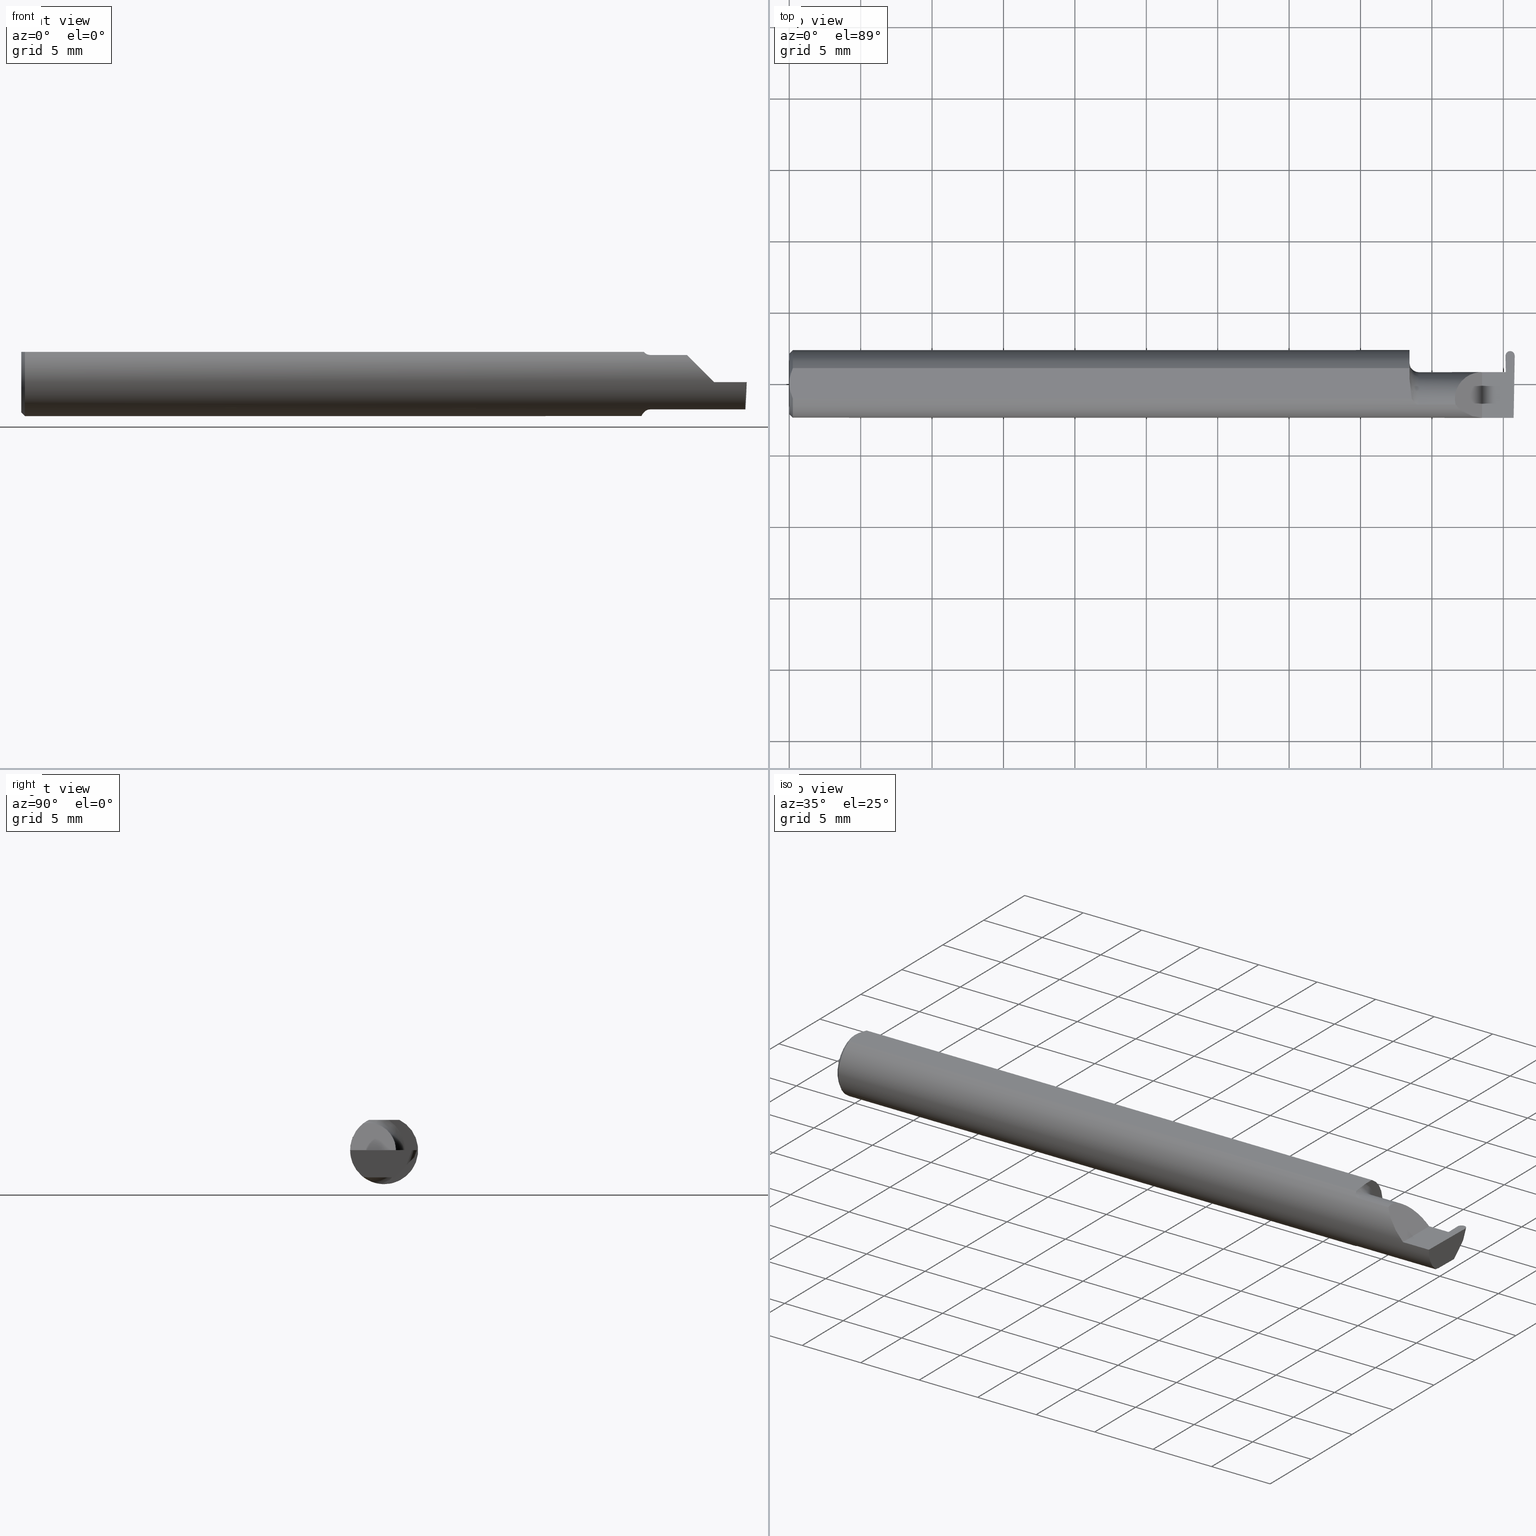
[diagram: canonical four-view strip — front | top / right | iso, engineering-drawing reading convention]
A machine part, canonical four-view strip (front | top / right | iso — engineering-drawing reading convention). The complete STEP part file that produces these views, byte-faithful:
ISO-10303-21;
HEADER;
FILE_DESCRIPTION (( 'STEP AP203' ),
    '1' );
FILE_NAME ('221816-GFR025K-4.STEP',
    '2024-06-17T19:11:29',
    ( '' ),
    ( '' ),
    'SwSTEP 2.0',
    'SolidWorks 2022',
    '' );
FILE_SCHEMA (( 'CONFIG_CONTROL_DESIGN' ));
ENDSEC;

DATA;
#1 = PERSON_AND_ORGANIZATION_ROLE ( 'creator' ) ;
#2 = LINE ( 'NONE', #386, #18 ) ;
#3 = ORIENTED_EDGE ( 'NONE', *, *, #178, .T. ) ;
#4 = VECTOR ( 'NONE', #614, 39.37007874015748143 ) ;
#5 = DATE_TIME_ROLE ( 'creation_date' ) ;
#6 = CARTESIAN_POINT ( 'NONE',  ( 1.974486369625657378, 0.07677130609030106967, 0.000000000000000000 ) ) ;
#7 = ORIENTED_EDGE ( 'NONE', *, *, #551, .T. ) ;
#8 = EDGE_CURVE ( 'NONE', #28, #357, #447, .T. ) ;
#9 = DIRECTION ( 'NONE',  ( 1.000000000000000000, -0.000000000000000000, -0.000000000000000000 ) ) ;
#10 = DIRECTION ( 'NONE',  ( -0.000000000000000000, 1.000000000000000000, -0.000000000000000000 ) ) ;
#11 = VERTEX_POINT ( 'NONE', #413 ) ;
#12 = CARTESIAN_POINT ( 'NONE',  ( 1.975523074283046965, 0.07412453217687620111, -0.02836003337206605482 ) ) ;
#13 = CARTESIAN_POINT ( 'NONE',  ( 1.980055790199319432, 0.08287919070721787296, -0.01960537484172428582 ) ) ;
#14 = EDGE_LOOP ( 'NONE', ( #382, #61, #676, #64, #215 ) ) ;
#15 = LINE ( 'NONE', #130, #182 ) ;
#16 = CARTESIAN_POINT ( 'NONE',  ( 1.717870098798738532, -0.04602557371825104909, 0.08162090280442951817 ) ) ;
#17 = LINE ( 'NONE', #657, #125 ) ;
#18 = VECTOR ( 'NONE', #594, 39.37007874015748854 ) ;
#19 = VECTOR ( 'NONE', #509, 39.37007874015748854 ) ;
#20 = CARTESIAN_POINT ( 'NONE',  ( 1.987236605000000100, 0.08345985621932504317, -0.01902470932961709826 ) ) ;
#21 = EDGE_CURVE ( 'NONE', #514, #43, #628, .T. ) ;
#22 = CARTESIAN_POINT ( 'NONE',  ( 1.718379054196076838, -0.04728090127810213178, -0.08090622725813384486 ) ) ;
#23 = DIRECTION ( 'NONE',  ( 1.000000000000000000, 0.000000000000000000, 0.000000000000000000 ) ) ;
#24 = ORIENTED_EDGE ( 'NONE', *, *, #119, .F. ) ;
#25 = CARTESIAN_POINT ( 'NONE',  ( 1.710323329158491390, -0.01767221859896409009, -0.09207639555340685344 ) ) ;
#26 = DIRECTION ( 'NONE',  ( 0.000000000000000000, 0.9396926207859082059, -0.3420201433256692125 ) ) ;
#27 = LINE ( 'NONE', #370, #172 ) ;
#28 = VERTEX_POINT ( 'NONE', #566 ) ;
#29 = AXIS2_PLACEMENT_3D ( 'NONE', #589, #699, #105 ) ;
#30 = VECTOR ( 'NONE', #179, 39.37007874015748143 ) ;
#31 = CONICAL_SURFACE ( 'NONE', #349, 0.08359999999999989662, 0.7853981633974458365 ) ;
#32 = CARTESIAN_POINT ( 'NONE',  ( 1.998318014211375448, 0.06205680439066463272, -0.04042776115827773770 ) ) ;
#33 = LINE ( 'NONE', #460, #423 ) ;
#34 = EDGE_CURVE ( 'NONE', #57, #470, #27, .T. ) ;
#35 = ORIENTED_EDGE ( 'NONE', *, *, #66, .F. ) ;
#36 = ORIENTED_EDGE ( 'NONE', *, *, #588, .T. ) ;
#37 = CARTESIAN_POINT ( 'NONE',  ( 1.709999999999999964, 0.03239999999999998437, 3.551475717527338624E-17 ) ) ;
#38 = CARTESIAN_POINT ( 'NONE',  ( 1.969248479888576320, 0.03239999999999999825, 0.000000000000000000 ) ) ;
#39 = DIRECTION ( 'NONE',  ( 0.000000000000000000, -0.9396926207859083169, 0.3420201433256689905 ) ) ;
#40 = ORIENTED_EDGE ( 'NONE', *, *, #99, .T. ) ;
#41 = DIRECTION ( 'NONE',  ( 1.613967815530507848E-16, -1.000000000000000000, 0.000000000000000000 ) ) ;
#42 = CARTESIAN_POINT ( 'NONE',  ( 1.714570820222980574, -0.02392027542784330024, 0.08359999999999992437 ) ) ;
#43 = VERTEX_POINT ( 'NONE', #319 ) ;
#44 = EDGE_LOOP ( 'NONE', ( #154, #387, #562, #309 ) ) ;
#45 = EDGE_CURVE ( 'NONE', #11, #224, #264, .T. ) ;
#46 = CARTESIAN_POINT ( 'NONE',  ( 1.999998056073120534, 0.07741385304294044756, 0.000000000000000000 ) ) ;
#47 =( BOUNDED_CURVE ( )  B_SPLINE_CURVE ( 3, ( #582, #50, #275, #261 ),
 .UNSPECIFIED., .F., .T. ) 
 B_SPLINE_CURVE_WITH_KNOTS ( ( 4, 4 ),
 ( 3.171655575341799871, 4.698770164224572277 ),
 .UNSPECIFIED. ) 
 CURVE ( )  GEOMETRIC_REPRESENTATION_ITEM ( )  RATIONAL_B_SPLINE_CURVE ( ( 1.000000000000000000, 0.8149204888834234994, 0.8149204888834234994, 1.000000000000000000 ) ) 
 REPRESENTATION_ITEM ( '' )  );
#48 = PERSON ( 'UNSPECIFIED', 'UNSPECIFIED', 'UNSPECIFIED', ('UNSPECIFIED'), ('UNSPECIFIED'), ('UNSPECIFIED') ) ;
#49 = ADVANCED_FACE ( 'NONE', ( #251 ), #681, .F. ) ;
#50 = CARTESIAN_POINT ( 'NONE',  ( 1.994417419800680769, 0.08287919070721785908, -0.01960537484172428582 ) ) ;
#51 = SECURITY_CLASSIFICATION_LEVEL ( 'unclassified' ) ;
#52 = CARTESIAN_POINT ( 'NONE',  ( 1.996507080450274474, 0.02748456554894272708, -0.07500000000000002498 ) ) ;
#53 = VERTEX_POINT ( 'NONE', #203 ) ;
#54 = DIRECTION ( 'NONE',  ( -1.224646799147358877E-16, 0.000000000000000000, -1.000000000000000000 ) ) ;
#55 = APPROVAL_ROLE ( '' ) ;
#56 = FACE_OUTER_BOUND ( 'NONE', #171, .T. ) ;
#57 = VERTEX_POINT ( 'NONE', #417 ) ;
#58 = AXIS2_PLACEMENT_3D ( 'NONE', #277, #486, #697 ) ;
#59 =( NAMED_UNIT ( * ) SI_UNIT ( $, .STERADIAN. ) SOLID_ANGLE_UNIT ( ) );
#60 = CARTESIAN_POINT ( 'NONE',  ( 1.987236605000000100, 0.08888709915835653341, -0.004156660900289306168 ) ) ;
#61 = ORIENTED_EDGE ( 'NONE', *, *, #200, .F. ) ;
#62 = LINE ( 'NONE', #285, #219 ) ;
#63 = CARTESIAN_POINT ( 'NONE',  ( 1.854690286057537163, -0.08092595952420827965, 0.05530971394246238931 ) ) ;
#64 = ORIENTED_EDGE ( 'NONE', *, *, #78, .F. ) ;
#65 = CARTESIAN_POINT ( 'NONE',  ( 1.709999999999999964, -0.006757276995305152960, -0.09335576686851605743 ) ) ;
#66 = EDGE_CURVE ( 'NONE', #377, #362, #625, .T. ) ;
#67 = CARTESIAN_POINT ( 'NONE',  ( 1.999986840374342822, 0.07677130609030106967, 0.000000000000000000 ) ) ;
#68 = APPROVAL_DATE_TIME ( #238, #429 ) ;
#69 = CC_DESIGN_APPROVAL ( #665, ( #242 ) ) ;
#70 = CARTESIAN_POINT ( 'NONE',  ( 0.0009807498324118613890, 0.01453516766257752398, 0.08359999999999992437 ) ) ;
#71 = CARTESIAN_POINT ( 'NONE',  ( 1.734999999999999876, -0.05810704225352093799, 0.07337936794867844226 ) ) ;
#72 = CARTESIAN_POINT ( 'NONE',  ( 1.975446786689251333, 0.03221730376948541558, -0.005231735530809524318 ) ) ;
#73 = APPLICATION_CONTEXT ( 'configuration controlled 3d designs of mechanical parts and assemblies' ) ;
#74 = CARTESIAN_POINT ( 'NONE',  ( 0.000000000000000000, 0.000000000000000000, 0.08359999999999991049 ) ) ;
#75 = APPROVAL_STATUS ( 'not_yet_approved' ) ;
#76 = ADVANCED_FACE ( 'NONE', ( #94 ), #633, .F. ) ;
#77 = AXIS2_PLACEMENT_3D ( 'NONE', #569, #512, #26 ) ;
#78 = EDGE_CURVE ( 'NONE', #186, #259, #167, .T. ) ;
#79 = CARTESIAN_POINT ( 'NONE',  ( 1.734999999999999876, -0.05810704225352095881, -0.07337936794867842838 ) ) ;
#80 = CARTESIAN_POINT ( 'NONE',  ( 1.975260873654413052, 0.03239999999999999825, 0.000000000000000000 ) ) ;
#81 = ORIENTED_EDGE ( 'NONE', *, *, #348, .F. ) ;
#82 = CARTESIAN_POINT ( 'NONE',  ( 0.01000000000000016674, -0.04209513035969864037, 0.08359999999999988274 ) ) ;
#83 = LINE ( 'NONE', #80, #335 ) ;
#84 = EDGE_LOOP ( 'NONE', ( #324, #321, #227, #432, #698 ) ) ;
#85 = EDGE_CURVE ( 'NONE', #470, #314, #273, .T. ) ;
#86 = CARTESIAN_POINT ( 'NONE',  ( 1.716206319820904991, -0.04283575577410217439, -0.08338874798717361980 ) ) ;
#87 = ADVANCED_FACE ( 'NONE', ( #56 ), #439, .F. ) ;
#88 = CARTESIAN_POINT ( 'NONE',  ( 1.709999999999999964, 0.003280657920457247939, 0.08359999999999991049 ) ) ;
#89 = ORIENTED_EDGE ( 'NONE', *, *, #85, .F. ) ;
#90 = CARTESIAN_POINT ( 'NONE',  ( 1.910000000000000142, 0.03240000000000001906, 3.551475717527338624E-17 ) ) ;
#91 = DIRECTION ( 'NONE',  ( 0.000000000000000000, 0.000000000000000000, 1.000000000000000000 ) ) ;
#92 = VERTEX_POINT ( 'NONE', #52 ) ;
#93 = FACE_OUTER_BOUND ( 'NONE', #14, .T. ) ;
#94 = FACE_OUTER_BOUND ( 'NONE', #342, .T. ) ;
#95 = VERTEX_POINT ( 'NONE', #648 ) ;
#96 = PERSON_AND_ORGANIZATION_ROLE ( 'creator' ) ;
#97 = DIRECTION ( 'NONE',  ( 0.03490480639812536257, 0.000000000000000000, -0.9993906415863165194 ) ) ;
#98 = ORIENTED_EDGE ( 'NONE', *, *, #673, .F. ) ;
#99 = EDGE_CURVE ( 'NONE', #92, #53, #2, .T. ) ;
#100 = AXIS2_PLACEMENT_3D ( 'NONE', #359, #143, #191 ) ;
#101 = AXIS2_PLACEMENT_3D ( 'NONE', #556, #457, #402 ) ;
#102 = DATE_AND_TIME ( #597, #516 ) ;
#103 = FACE_OUTER_BOUND ( 'NONE', #211, .T. ) ;
#104 = ORIENTED_EDGE ( 'NONE', *, *, #430, .T. ) ;
#105 = DIRECTION ( 'NONE',  ( 0.000000000000000000, 0.000000000000000000, -1.000000000000000000 ) ) ;
#106 = B_SPLINE_CURVE_WITH_KNOTS ( 'NONE', 3,
 ( #296, #16, #241, #456, #313, #142, #624, #369 ),
 .UNSPECIFIED., .F., .F.,
 ( 4, 2, 2, 4 ),
 ( 4.741820243506000245E-07, 0.0003579866703973730020, 0.0005367429145838906006, 0.0007154991587704081450 ),
 .UNSPECIFIED. ) ;
#107 = CARTESIAN_POINT ( 'NONE',  ( 1.987236605000000100, 0.08708177269239944507, -0.009116754600250196253 ) ) ;
#108 = VERTEX_POINT ( 'NONE', #223 ) ;
#109 = DATE_AND_TIME ( #434, #466 ) ;
#110 = DIRECTION ( 'NONE',  ( -1.000000000000000000, -0.000000000000000000, -0.000000000000000000 ) ) ;
#111 = ORIENTED_EDGE ( 'NONE', *, *, #673, .T. ) ;
#112 = CARTESIAN_POINT ( 'NONE',  ( 1.976921122959496957, 0.02931965133412154506, -0.04667009593691548441 ) ) ;
#113 = CARTESIAN_POINT ( 'NONE',  ( 1.734999999999999876, -0.04260000000000008225, 0.000000000000000000 ) ) ;
#114 = CARTESIAN_POINT ( 'NONE',  ( 1.995283749808152374, -0.04259999999999949244, -0.07500000000000002498 ) ) ;
#115 = DIRECTION ( 'NONE',  ( 1.000000000000000000, 0.000000000000000000, 0.000000000000000000 ) ) ;
#116 = ORIENTED_EDGE ( 'NONE', *, *, #642, .T. ) ;
#117 = DIRECTION ( 'NONE',  ( -1.000000000000000000, -0.000000000000000000, -0.000000000000000000 ) ) ;
#118 = ORIENTED_EDGE ( 'NONE', *, *, #283, .T. ) ;
#119 = EDGE_CURVE ( 'NONE', #139, #168, #325, .T. ) ;
#120 =( BOUNDED_CURVE ( )  B_SPLINE_CURVE ( 3, ( #67, #552, #407, #350 ),
 .UNSPECIFIED., .F., .T. ) 
 B_SPLINE_CURVE_WITH_KNOTS ( ( 4, 4 ),
 ( 1.672436806532649367, 3.247686724355377752 ),
 .UNSPECIFIED. ) 
 CURVE ( )  GEOMETRIC_REPRESENTATION_ITEM ( )  RATIONAL_B_SPLINE_CURVE ( ( 1.000000000000000000, 0.8036869647627060687, 0.8036869647627060687, 1.000000000000000000 ) ) 
 REPRESENTATION_ITEM ( '' )  );
#121 = CARTESIAN_POINT ( 'NONE',  ( 0.01000000000000016674, 0.000000000000000000, 0.000000000000000000 ) ) ;
#122 = EDGE_CURVE ( 'NONE', #53, #11, #281, .T. ) ;
#123 = CARTESIAN_POINT ( 'NONE',  ( 0.000000000000000000, 0.04209513035969864037, 0.08359999999999988274 ) ) ;
#124 = AXIS2_PLACEMENT_3D ( 'NONE', #121, #344, #201 ) ;
#125 = VECTOR ( 'NONE', #236, 39.37007874015748143 ) ;
#126 = EDGE_LOOP ( 'NONE', ( #494, #7, #490 ) ) ;
#127 = ADVANCED_FACE ( 'NONE', ( #326 ), #392, .F. ) ;
#128 = LINE ( 'NONE', #123, #292 ) ;
#129 = FACE_OUTER_BOUND ( 'NONE', #649, .T. ) ;
#130 = CARTESIAN_POINT ( 'NONE',  ( 1.974539839182260614, 0.1197494621322279795, 0.01726489658328622667 ) ) ;
#131 = EDGE_CURVE ( 'NONE', #464, #269, #164, .T. ) ;
#132 = ORIENTED_EDGE ( 'NONE', *, *, #8, .T. ) ;
#133 = CARTESIAN_POINT ( 'NONE',  ( 1.854736604999999816, -0.05810704225352100738, 0.07337936794867837287 ) ) ;
#134 = ORIENTED_EDGE ( 'NONE', *, *, #384, .F. ) ;
#135 = AXIS2_PLACEMENT_3D ( 'NONE', #46, #600, #268 ) ;
#136 = ORIENTED_EDGE ( 'NONE', *, *, #548, .F. ) ;
#137 = CARTESIAN_POINT ( 'NONE',  ( 1.977964271591899248, -0.001060451341131600630, -0.07500000000000006661 ) ) ;
#138 = CYLINDRICAL_SURFACE ( 'NONE', #77, 0.01274999999999999745 ) ;
#139 = VERTEX_POINT ( 'NONE', #435 ) ;
#140 = EDGE_CURVE ( 'NONE', #108, #470, #396, .T. ) ;
#141 = DIRECTION ( 'NONE',  ( -1.613967815530507848E-16, 1.000000000000000000, 0.000000000000000000 ) ) ;
#142 = CARTESIAN_POINT ( 'NONE',  ( 1.730292432600753827, -0.05747478081012615675, 0.07388601572377859195 ) ) ;
#143 = DIRECTION ( 'NONE',  ( -1.000000000000000000, -0.000000000000000000, -0.000000000000000000 ) ) ;
#144 = DIRECTION ( 'NONE',  ( 1.000000000000000000, 1.613967815530507848E-16, 0.000000000000000000 ) ) ;
#145 = DIRECTION ( 'NONE',  ( 1.000000000000000000, 0.000000000000000000, -0.000000000000000000 ) ) ;
#146 = ORIENTED_EDGE ( 'NONE', *, *, #367, .F. ) ;
#147 = EDGE_CURVE ( 'NONE', #259, #513, #528, .T. ) ;
#148 = EDGE_CURVE ( 'NONE', #487, #455, #157, .T. ) ;
#149 = CARTESIAN_POINT ( 'NONE',  ( 0.000000000000000000, 0.000000000000000000, 0.08359999999999991049 ) ) ;
#150 = CARTESIAN_POINT ( 'NONE',  ( 1.974475153926879667, 0.07741385304294044756, 0.000000000000000000 ) ) ;
#151 = ORIENTED_EDGE ( 'NONE', *, *, #588, .F. ) ;
#152 = ADVANCED_FACE ( 'NONE', ( #103 ), #489, .F. ) ;
#153 = CARTESIAN_POINT ( 'NONE',  ( 1.997012998164632958, -0.09360000000000001652, 0.000000000000000000 ) ) ;
#154 = ORIENTED_EDGE ( 'NONE', *, *, #611, .F. ) ;
#155 = CARTESIAN_POINT ( 'NONE',  ( 1.987236605000000100, 0.08888709915835653341, -0.004156660900289306168 ) ) ;
#156 = APPLICATION_PROTOCOL_DEFINITION ( 'international standard', 'config_control_design', 1994, #445 ) ;
#157 = LINE ( 'NONE', #381, #355 ) ;
#158 = ORIENTED_EDGE ( 'NONE', *, *, #642, .F. ) ;
#159 = VECTOR ( 'NONE', #571, 39.37007874015748143 ) ;
#160 = AXIS2_PLACEMENT_3D ( 'NONE', #243, #444, #177 ) ;
#161 = CC_DESIGN_APPROVAL ( #477, ( #192 ) ) ;
#162 =( GEOMETRIC_REPRESENTATION_CONTEXT ( 3 ) GLOBAL_UNCERTAINTY_ASSIGNED_CONTEXT ( ( #308 ) ) GLOBAL_UNIT_ASSIGNED_CONTEXT ( ( #488, #693, #59 ) ) REPRESENTATION_CONTEXT ( 'NONE', 'WORKASPACE' ) );
#163 = PERSON_AND_ORGANIZATION_ROLE ( 'design_owner' ) ;
#164 = LINE ( 'NONE', #482, #658 ) ;
#165 = ORIENTED_EDGE ( 'NONE', *, *, #85, .T. ) ;
#166 = DIRECTION ( 'NONE',  ( 1.000000000000000000, 0.000000000000000000, 0.000000000000000000 ) ) ;
#167 = LINE ( 'NONE', #216, #599 ) ;
#168 = VERTEX_POINT ( 'NONE', #226 ) ;
#169 = COORDINATED_UNIVERSAL_TIME_OFFSET ( 8, 0, .BEHIND. ) ;
#170 = CARTESIAN_POINT ( 'NONE',  ( 1.987065021309431190, 0.09039999999999999425, 0.000000000000000000 ) ) ;
#171 = EDGE_LOOP ( 'NONE', ( #446, #421, #493, #329, #146, #525 ) ) ;
#172 = VECTOR ( 'NONE', #475, 39.37007874015747433 ) ;
#173 = LOCAL_TIME ( 12, 11, 29.00000000000000000, #485 ) ;
#174 = CARTESIAN_POINT ( 'NONE',  ( 1.976155195788624752, 0.06205680439066463966, -0.04042776115827773076 ) ) ;
#175 = SHAPE_DEFINITION_REPRESENTATION ( #400, #343 ) ;
#176 = ORIENTED_EDGE ( 'NONE', *, *, #228, .F. ) ;
#177 = DIRECTION ( 'NONE',  ( 0.000000000000000000, -1.000000000000000000, 0.000000000000000000 ) ) ;
#178 = EDGE_CURVE ( 'NONE', #487, #691, #605, .T. ) ;
#179 = DIRECTION ( 'NONE',  ( -0.03701368837992301264, -0.7066222423871552083, -0.7066222423871628688 ) ) ;
#180 = CARTESIAN_POINT ( 'NONE',  ( 0.01000000000000016674, 0.04209513035969864037, 0.08359999999999988274 ) ) ;
#181 = VECTOR ( 'NONE', #363, 39.37007874015748143 ) ;
#182 = VECTOR ( 'NONE', #295, 39.37007874015748143 ) ;
#183 = EDGE_CURVE ( 'NONE', #352, #95, #233, .T. ) ;
#184 = CARTESIAN_POINT ( 'NONE',  ( 1.969065783658062951, 0.03221730376948678254, -0.005231735530810288463 ) ) ;
#185 = CARTESIAN_POINT ( 'NONE',  ( 1.711762116932663558, -0.02818790137206256263, -0.08941930521177116065 ) ) ;
#186 = VERTEX_POINT ( 'NONE', #376 ) ;
#187 = DIRECTION ( 'NONE',  ( 0.000000000000000000, -0.9396926207859084279, 0.3420201433256686019 ) ) ;
#188 = CARTESIAN_POINT ( 'NONE',  ( 1.712856118429613828, -0.03323074941465632010, -0.08766015375840498225 ) ) ;
#189 =( BOUNDED_CURVE ( )  B_SPLINE_CURVE ( 3, ( #290, #12, #13, #448 ),
 .UNSPECIFIED., .F., .T. ) 
 B_SPLINE_CURVE_WITH_KNOTS ( ( 4, 4 ),
 ( 4.726007796544807071, 6.253122385427579921 ),
 .UNSPECIFIED. ) 
 CURVE ( )  GEOMETRIC_REPRESENTATION_ITEM ( )  RATIONAL_B_SPLINE_CURVE ( ( 1.000000000000000000, 0.8149204888834233884, 0.8149204888834233884, 1.000000000000000000 ) ) 
 REPRESENTATION_ITEM ( '' )  );
#190 = CARTESIAN_POINT ( 'NONE',  ( 1.969065783658062951, 0.03221730376948678254, -0.005231735530810288463 ) ) ;
#191 = DIRECTION ( 'NONE',  ( 0.000000000000000000, 0.000000000000000000, -1.000000000000000000 ) ) ;
#192 = PRODUCT_DEFINITION_FORMATION_WITH_SPECIFIED_SOURCE ( 'ANY', '', #499, .NOT_KNOWN. ) ;
#193 = CARTESIAN_POINT ( 'NONE',  ( 1.975260873654413052, 0.03239999999999999825, -4.732000043842587031E-21 ) ) ;
#194 = CARTESIAN_POINT ( 'NONE',  ( 0.000000000000000000, 0.000000000000000000, 0.000000000000000000 ) ) ;
#195 = CARTESIAN_POINT ( 'NONE',  ( -3.937007874019685528E-05, 0.09039999999999999425, 0.000000000000000000 ) ) ;
#196 = DIRECTION ( 'NONE',  ( 0.000000000000000000, 0.000000000000000000, 1.000000000000000000 ) ) ;
#197 = LINE ( 'NONE', #521, #181 ) ;
#198 = ORIENTED_EDGE ( 'NONE', *, *, #617, .F. ) ;
#199 = ORIENTED_EDGE ( 'NONE', *, *, #140, .F. ) ;
#200 = EDGE_CURVE ( 'NONE', #513, #514, #47, .T. ) ;
#201 = DIRECTION ( 'NONE',  ( 0.000000000000000000, 0.000000000000000000, -1.000000000000000000 ) ) ;
#202 = LINE ( 'NONE', #619, #506 ) ;
#203 = CARTESIAN_POINT ( 'NONE',  ( 1.995283749808152374, -0.04259999999999949244, -0.07500000000000002498 ) ) ;
#204 = VERTEX_POINT ( 'NONE', #484 ) ;
#205 = VECTOR ( 'NONE', #110, 39.37007874015748143 ) ;
#206 = AXIS2_PLACEMENT_3D ( 'NONE', #462, #579, #187 ) ;
#207 = EDGE_CURVE ( 'NONE', #547, #352, #644, .T. ) ;
#208 = CARTESIAN_POINT ( 'NONE',  ( 1.977928892320435450, 0.02748456554894274442, -0.07500000000000001110 ) ) ;
#209 = APPROVAL_STATUS ( 'not_yet_approved' ) ;
#210 = ORIENTED_EDGE ( 'NONE', *, *, #346, .F. ) ;
#211 = EDGE_LOOP ( 'NONE', ( #626, #497, #682, #36 ) ) ;
#212 = CARTESIAN_POINT ( 'NONE',  ( 0.000000000000000000, 0.000000000000000000, 0.000000000000000000 ) ) ;
#213 =( LENGTH_UNIT ( ) NAMED_UNIT ( * ) SI_UNIT ( $, .METRE. ) );
#214 = CARTESIAN_POINT ( 'NONE',  ( 1.987236605000000100, 0.08345985621932504317, -0.01902470932961709826 ) ) ;
#215 = ORIENTED_EDGE ( 'NONE', *, *, #283, .F. ) ;
#216 = CARTESIAN_POINT ( 'NONE',  ( 1.984422275622966580, 0.06407237889530596753, -0.07233454449310373902 ) ) ;
#217 = ORIENTED_EDGE ( 'NONE', *, *, #458, .F. ) ;
#218 = ADVANCED_FACE ( 'NONE', ( #441 ), #291, .F. ) ;
#219 = VECTOR ( 'NONE', #9, 39.37007874015748143 ) ;
#220 = DIRECTION ( 'NONE',  ( -1.000000000000000000, 0.000000000000000000, 1.224646799147358877E-16 ) ) ;
#221 = AXIS2_PLACEMENT_3D ( 'NONE', #307, #23, #247 ) ;
#222 = PERSON_AND_ORGANIZATION_ROLE ( 'classification_officer' ) ;
#223 = CARTESIAN_POINT ( 'NONE',  ( 1.987065021309431190, 0.09039999999999999425, 0.000000000000000000 ) ) ;
#224 = VERTEX_POINT ( 'NONE', #208 ) ;
#225 = APPROVAL_DATE_TIME ( #276, #477 ) ;
#226 = CARTESIAN_POINT ( 'NONE',  ( 1.997012998164632958, -0.09360000000000001652, 0.000000000000000000 ) ) ;
#227 = ORIENTED_EDGE ( 'NONE', *, *, #580, .F. ) ;
#228 = EDGE_CURVE ( 'NONE', #204, #314, #635, .T. ) ;
#229 = ADVANCED_FACE ( 'NONE', ( #646 ), #378, .F. ) ;
#230 = DIRECTION ( 'NONE',  ( -1.000000000000000000, -0.000000000000000000, -0.000000000000000000 ) ) ;
#231 = DIRECTION ( 'NONE',  ( 1.000000000000000000, 1.613967815530507848E-16, 0.000000000000000000 ) ) ;
#232 = ORIENTED_EDGE ( 'NONE', *, *, #622, .F. ) ;
#233 = CIRCLE ( 'NONE', #618, 0.09360000000000001652 ) ;
#234 = AXIS2_PLACEMENT_3D ( 'NONE', #240, #230, #500 ) ;
#235 = LOCAL_TIME ( 12, 11, 29.00000000000000000, #374 ) ;
#236 = DIRECTION ( 'NONE',  ( -1.000000000000000000, -0.000000000000000000, -0.000000000000000000 ) ) ;
#237 = ADVANCED_FACE ( 'NONE', ( #266 ), #638, .F. ) ;
#238 = DATE_AND_TIME ( #405, #610 ) ;
#239 = DIRECTION ( 'NONE',  ( 1.000000000000000000, -0.000000000000000000, -0.000000000000000000 ) ) ;
#240 = CARTESIAN_POINT ( 'NONE',  ( 0.000000000000000000, 0.000000000000000000, 0.000000000000000000 ) ) ;
#241 = CARTESIAN_POINT ( 'NONE',  ( 1.720033121973953083, -0.04963861219531606056, 0.07943694244057655784 ) ) ;
#242 = PRODUCT_DEFINITION ( 'UNKNOWN', '', #192, #265 ) ;
#243 = CARTESIAN_POINT ( 'NONE',  ( 1.734999999999999876, -0.04260000000000008225, 0.000000000000000000 ) ) ;
#244 = VECTOR ( 'NONE', #323, 39.37007874015748854 ) ;
#245 = ORIENTED_EDGE ( 'NONE', *, *, #340, .F. ) ;
#246 = DIRECTION ( 'NONE',  ( -0.7071067811865442421, 0.000000000000000000, -0.7071067811865509034 ) ) ;
#247 = DIRECTION ( 'NONE',  ( 0.000000000000000000, 0.000000000000000000, -1.000000000000000000 ) ) ;
#248 = ORIENTED_EDGE ( 'NONE', *, *, #45, .T. ) ;
#249 = CARTESIAN_POINT ( 'NONE',  ( 0.01000000000000016674, 0.04209513035969864037, 0.08359999999999988274 ) ) ;
#250 = ADVANCED_FACE ( 'NONE', ( #438 ), #31, .T. ) ;
#251 = FACE_OUTER_BOUND ( 'NONE', #126, .T. ) ;
#252 = ORIENTED_EDGE ( 'NONE', *, *, #147, .T. ) ;
#253 = FACE_OUTER_BOUND ( 'NONE', #391, .T. ) ;
#254 = CC_DESIGN_PERSON_AND_ORGANIZATION_ASSIGNMENT ( #585, #96, ( #192 ) ) ;
#255 = ORIENTED_EDGE ( 'NONE', *, *, #131, .T. ) ;
#256 = CARTESIAN_POINT ( 'NONE',  ( 1.729541435880794120, -0.05724930034136781198, -0.07406832579512054315 ) ) ;
#257 = CARTESIAN_POINT ( 'NONE',  ( 2.191425808082400728, 0.09360000000000005815, 0.08359999999999991049 ) ) ;
#258 = ORIENTED_EDGE ( 'NONE', *, *, #99, .F. ) ;
#259 = VERTEX_POINT ( 'NONE', #155 ) ;
#260 = B_SPLINE_CURVE_WITH_KNOTS ( 'NONE', 3,
 ( #190, #318, #410, #38 ),
 .UNSPECIFIED., .F., .F.,
 ( 4, 4 ),
 ( 0.000000000000000000, 1.000000000000000000 ),
 .UNSPECIFIED. ) ;
#261 = CARTESIAN_POINT ( 'NONE',  ( 1.998318014211375448, 0.06205680439066463272, -0.04042776115827773770 ) ) ;
#262 = COORDINATED_UNIVERSAL_TIME_OFFSET ( 8, 0, .BEHIND. ) ;
#263 = AXIS2_PLACEMENT_3D ( 'NONE', #150, #372, #97 ) ;
#264 = LINE ( 'NONE', #304, #478 ) ;
#265 = DESIGN_CONTEXT ( 'detailed design', #73, 'design' ) ;
#266 = FACE_OUTER_BOUND ( 'NONE', #373, .T. ) ;
#267 = CARTESIAN_POINT ( 'NONE',  ( 1.995069675717878299, -0.05810704225352097962, -0.07337936794867837287 ) ) ;
#268 = DIRECTION ( 'NONE',  ( 0.03490480639812536257, 0.000000000000000000, 0.9993906415863165194 ) ) ;
#269 = VERTEX_POINT ( 'NONE', #452 ) ;
#270 =( BOUNDED_CURVE ( )  B_SPLINE_CURVE ( 3, ( #311, #302, #366, #461 ),
 .UNSPECIFIED., .F., .T. ) 
 B_SPLINE_CURVE_WITH_KNOTS ( ( 4, 4 ),
 ( 6.074922494366329140, 7.853981633974482790 ),
 .UNSPECIFIED. ) 
 CURVE ( )  GEOMETRIC_REPRESENTATION_ITEM ( )  RATIONAL_B_SPLINE_CURVE ( ( 1.000000000000000000, 0.7531850099525143616, 0.7531850099525143616, 1.000000000000000000 ) ) 
 REPRESENTATION_ITEM ( '' )  );
#271 = CC_DESIGN_PERSON_AND_ORGANIZATION_ASSIGNMENT ( #652, #163, ( #499 ) ) ;
#272 = PERSON_AND_ORGANIZATION ( #48, #677 ) ;
#273 = LINE ( 'NONE', #640, #629 ) ;
#274 = ORIENTED_EDGE ( 'NONE', *, *, #305, .T. ) ;
#275 = CARTESIAN_POINT ( 'NONE',  ( 1.998950135716953236, 0.07412453217687618723, -0.02836003337206604441 ) ) ;
#276 = DATE_AND_TIME ( #583, #235 ) ;
#277 = CARTESIAN_POINT ( 'NONE',  ( -3.937007874019685528E-05, 0.08348456554894213844, -0.01899999999999999953 ) ) ;
#278 = ORIENTED_EDGE ( 'NONE', *, *, #178, .F. ) ;
#279 = CLOSED_SHELL ( 'NONE', ( #250, #152, #449, #537, #237, #604, #567, #229, #289, #218, #419, #332, #49, #87, #76, #127, #360, #692, #615 ) ) ;
#280 = DIRECTION ( 'NONE',  ( -1.000000000000000000, -1.613967815530507848E-16, -0.000000000000000000 ) ) ;
#281 = LINE ( 'NONE', #390, #205 ) ;
#282 = VERTEX_POINT ( 'NONE', #454 ) ;
#283 = EDGE_CURVE ( 'NONE', #43, #186, #120, .T. ) ;
#284 = EDGE_CURVE ( 'NONE', #535, #282, #530, .T. ) ;
#285 = CARTESIAN_POINT ( 'NONE',  ( -3.937007874019685528E-05, 0.02748456554894272708, -0.07500000000000002498 ) ) ;
#286 = COORDINATED_UNIVERSAL_TIME_OFFSET ( 8, 0, .BEHIND. ) ;
#287 = CARTESIAN_POINT ( 'NONE',  ( 1.836620632051321200, -0.05810704225352119473, 0.07337936794867828960 ) ) ;
#288 = ORIENTED_EDGE ( 'NONE', *, *, #401, .T. ) ;
#289 = ADVANCED_FACE ( 'NONE', ( #395 ), #353, .T. ) ;
#290 = CARTESIAN_POINT ( 'NONE',  ( 1.976155195788624752, 0.06205680439066463966, -0.04042776115827773076 ) ) ;
#291 = TOROIDAL_SURFACE ( 'NONE', #380, 0.1000000000000000472, 0.02499999999999993894 ) ;
#292 = VECTOR ( 'NONE', #117, 39.37007874015748143 ) ;
#293 = AXIS2_PLACEMENT_3D ( 'NONE', #536, #54, #220 ) ;
#294 = CC_DESIGN_SECURITY_CLASSIFICATION ( #555, ( #192 ) ) ;
#295 = DIRECTION ( 'NONE',  ( -0.02596452850600439871, 0.7068683906002057871, 0.7068683906002134476 ) ) ;
#296 = CARTESIAN_POINT ( 'NONE',  ( 1.716129652885479473, -0.04209513035970122857, 0.08359999999999991049 ) ) ;
#297 = CARTESIAN_POINT ( 'NONE',  ( 0.004492168231814808177, 0.02859366993844194779, 0.08359999999999991049 ) ) ;
#298 = EDGE_CURVE ( 'NONE', #357, #469, #406, .T. ) ;
#299 = CARTESIAN_POINT ( 'NONE',  ( 1.978551769901040647, -1.946488684219110255, -0.02361696348642888105 ) ) ;
#300 = DIRECTION ( 'NONE',  ( 1.000000000000000000, 1.613967815530507848E-16, 0.000000000000000000 ) ) ;
#301 = EDGE_CURVE ( 'NONE', #168, #487, #17, .T. ) ;
#302 = CARTESIAN_POINT ( 'NONE',  ( 1.825958805822864628, -0.007655250284932180876, 0.08404119417713473705 ) ) ;
#303 = PLANE ( 'NONE',  #468 ) ;
#304 = CARTESIAN_POINT ( 'NONE',  ( 1.978015968337363928, -0.04277087700585922858, -0.07500000000000002498 ) ) ;
#305 = EDGE_CURVE ( 'NONE', #357, #28, #659, .T. ) ;
#306 = CARTESIAN_POINT ( 'NONE',  ( 1.910000000000000142, -0.09360000000000005815, 1.102182119232621301E-17 ) ) ;
#307 = CARTESIAN_POINT ( 'NONE',  ( 0.01000000000000016674, 0.000000000000000000, 0.000000000000000000 ) ) ;
#308 = UNCERTAINTY_MEASURE_WITH_UNIT (LENGTH_MEASURE( 1.000000000000000082E-05 ), #488, 'distance_accuracy_value', 'NONE');
#309 = ORIENTED_EDGE ( 'NONE', *, *, #598, .F. ) ;
#310 = ORIENTED_EDGE ( 'NONE', *, *, #148, .F. ) ;
#311 = CARTESIAN_POINT ( 'NONE',  ( 1.836620632051321200, -0.05810704225352119473, 0.07337936794867828960 ) ) ;
#312 = AXIS2_PLACEMENT_3D ( 'NONE', #630, #679, #196 ) ;
#313 = CARTESIAN_POINT ( 'NONE',  ( 1.726308147845286634, -0.05549979236676334110, 0.07538081185522389760 ) ) ;
#314 = VERTEX_POINT ( 'NONE', #174 ) ;
#315 = ORIENTED_EDGE ( 'NONE', *, *, #183, .F. ) ;
#316 = CIRCLE ( 'NONE', #124, 0.09360000000000001652 ) ;
#317 = CYLINDRICAL_SURFACE ( 'NONE', #312, 0.09360000000000001652 ) ;
#318 = CARTESIAN_POINT ( 'NONE',  ( 1.969126682401567408, 0.03227820251299119009, -0.003487823687206865336 ) ) ;
#319 = CARTESIAN_POINT ( 'NONE',  ( 1.999986840374342822, 0.07677130609030106967, 0.000000000000000000 ) ) ;
#320 = ORIENTED_EDGE ( 'NONE', *, *, #119, .T. ) ;
#321 = ORIENTED_EDGE ( 'NONE', *, *, #207, .F. ) ;
#322 = FACE_OUTER_BOUND ( 'NONE', #44, .T. ) ;
#323 = DIRECTION ( 'NONE',  ( 0.03876062227022269990, 0.3417631236437463915, 0.9389864650134709390 ) ) ;
#324 = ORIENTED_EDGE ( 'NONE', *, *, #501, .T. ) ;
#325 =( BOUNDED_CURVE ( )  B_SPLINE_CURVE ( 3, ( #586, #655, #534, #153 ),
 .UNSPECIFIED., .F., .T. ) 
 B_SPLINE_CURVE_WITH_KNOTS ( ( 4, 4 ),
 ( 0.2063001339125765943, 1.107331509589607910 ),
 .UNSPECIFIED. ) 
 CURVE ( )  GEOMETRIC_REPRESENTATION_ITEM ( )  RATIONAL_B_SPLINE_CURVE ( ( 1.000000000000000000, 0.9334817841311872089, 0.9334817841311872089, 1.000000000000000000 ) ) 
 REPRESENTATION_ITEM ( '' )  );
#326 = FACE_OUTER_BOUND ( 'NONE', #634, .T. ) ;
#327 = PERSON_AND_ORGANIZATION ( #48, #677 ) ;
#328 = CARTESIAN_POINT ( 'NONE',  ( 1.880893035518783396, -0.09360000000000001652, 0.02910696448121676688 ) ) ;
#329 = ORIENTED_EDGE ( 'NONE', *, *, #346, .T. ) ;
#330 = CARTESIAN_POINT ( 'NONE',  ( 1.975260873654413052, 0.03239999999999999825, 0.000000000000000000 ) ) ;
#331 = ORIENTED_EDGE ( 'NONE', *, *, #401, .F. ) ;
#332 = ADVANCED_FACE ( 'NONE', ( #664 ), #404, .F. ) ;
#333 = CARTESIAN_POINT ( 'NONE',  ( 1.979564206858069220, 0.09040000000000021629, 9.406295376684195230E-19 ) ) ;
#334 = ORIENTED_EDGE ( 'NONE', *, *, #45, .F. ) ;
#335 = VECTOR ( 'NONE', #420, 39.37007874015748143 ) ;
#336 = DIRECTION ( 'NONE',  ( -1.000000000000000000, -1.613967815530507848E-16, -0.000000000000000000 ) ) ;
#337 = CARTESIAN_POINT ( 'NONE',  ( 0.000000000000000000, 0.000000000000000000, 0.000000000000000000 ) ) ;
#338 = CARTESIAN_POINT ( 'NONE',  ( 1.709999999999999964, 0.000000000000000000, 0.000000000000000000 ) ) ;
#339 = ORIENTED_EDGE ( 'NONE', *, *, #348, .T. ) ;
#340 = EDGE_CURVE ( 'NONE', #224, #204, #15, .T. ) ;
#341 = CARTESIAN_POINT ( 'NONE',  ( 1.975446786689251333, 0.03221730376948541558, -0.005231735530809524318 ) ) ;
#342 = EDGE_LOOP ( 'NONE', ( #542, #165, #176, #104, #473 ) ) ;
#343 = ADVANCED_BREP_SHAPE_REPRESENTATION ( '221816-GFR025K-4', ( #453, #577 ), #162 ) ;
#344 = DIRECTION ( 'NONE',  ( 1.000000000000000000, 0.000000000000000000, 0.000000000000000000 ) ) ;
#345 = EDGE_LOOP ( 'NONE', ( #483, #248, #422, #40 ) ) ;
#346 = EDGE_CURVE ( 'NONE', #514, #92, #496, .T. ) ;
#347 = VECTOR ( 'NONE', #651, 39.37007874015748143 ) ;
#348 = EDGE_CURVE ( 'NONE', #95, #469, #128, .T. ) ;
#349 = AXIS2_PLACEMENT_3D ( 'NONE', #212, #166, #596 ) ;
#350 = CARTESIAN_POINT ( 'NONE',  ( 1.987408188690569011, 0.09039999999999999425, 0.000000000000000000 ) ) ;
#351 = CIRCLE ( 'NONE', #221, 0.09360000000000001652 ) ;
#352 = VERTEX_POINT ( 'NONE', #65 ) ;
#353 = CYLINDRICAL_SURFACE ( 'NONE', #101, 0.07500000000000006661 ) ;
#354 = CC_DESIGN_PERSON_AND_ORGANIZATION_ASSIGNMENT ( #327, #533, ( #192 ) ) ;
#355 = VECTOR ( 'NONE', #10, 39.37007874015748143 ) ;
#356 = LINE ( 'NONE', #37, #650 ) ;
#357 = VERTEX_POINT ( 'NONE', #74 ) ;
#358 = LINE ( 'NONE', #616, #19 ) ;
#359 = CARTESIAN_POINT ( 'NONE',  ( 0.000000000000000000, 0.000000000000000000, 0.000000000000000000 ) ) ;
#360 = ADVANCED_FACE ( 'NONE', ( #606 ), #544, .F. ) ;
#361 = CARTESIAN_POINT ( 'NONE',  ( 0.01000000000000016674, -0.04209513035969864037, 0.08359999999999988274 ) ) ;
#362 = VERTEX_POINT ( 'NONE', #184 ) ;
#363 = DIRECTION ( 'NONE',  ( -1.613967815530507848E-16, 1.000000000000000000, 0.000000000000000000 ) ) ;
#364 = DIRECTION ( 'NONE',  ( -1.000000000000000000, -1.613967815530507848E-16, -0.000000000000000000 ) ) ;
#365 = EDGE_LOOP ( 'NONE', ( #255, #592, #573, #339, #601, #98 ) ) ;
#366 = CARTESIAN_POINT ( 'NONE',  ( 1.858433946715231766, 0.03240000000000000518, 0.05156605328476855654 ) ) ;
#367 = EDGE_CURVE ( 'NONE', #224, #92, #62, .T. ) ;
#368 = AXIS2_PLACEMENT_3D ( 'NONE', #195, #39, #688 ) ;
#369 = CARTESIAN_POINT ( 'NONE',  ( 1.734999999999999876, -0.05810704225352093799, 0.07337936794867844226 ) ) ;
#370 = CARTESIAN_POINT ( 'NONE',  ( 1.974475153926879667, 0.07741385304294044756, 0.000000000000000000 ) ) ;
#371 = CARTESIAN_POINT ( 'NONE',  ( 1.836620632051321200, -0.05810704225352119473, 0.07337936794867828960 ) ) ;
#372 = DIRECTION ( 'NONE',  ( 0.9992386149554827179, 0.01744177490282189033, 0.03489949670250104552 ) ) ;
#373 = EDGE_LOOP ( 'NONE', ( #134, #474, #459, #151, #684, #310, #519, #158, #118 ) ) ;
#374 = COORDINATED_UNIVERSAL_TIME_OFFSET ( 8, 0, .BEHIND. ) ;
#375 = EDGE_CURVE ( 'NONE', #314, #513, #189, .T. ) ;
#376 = CARTESIAN_POINT ( 'NONE',  ( 1.987408188690569011, 0.09039999999999999425, 0.000000000000000000 ) ) ;
#377 = VERTEX_POINT ( 'NONE', #341 ) ;
#378 = PLANE ( 'NONE',  #29 ) ;
#379 = APPLICATION_PROTOCOL_DEFINITION ( 'international standard', 'config_control_design', 1994, #73 ) ;
#380 = AXIS2_PLACEMENT_3D ( 'NONE', #113, #336, #41 ) ;
#381 = CARTESIAN_POINT ( 'NONE',  ( 1.910000000000000142, -0.2500000000000000555, 1.102182119232621301E-17 ) ) ;
#382 = ORIENTED_EDGE ( 'NONE', *, *, #21, .F. ) ;
#383 = APPROVAL_PERSON_ORGANIZATION ( #442, #665, #593 ) ;
#384 = EDGE_CURVE ( 'NONE', #108, #186, #661, .T. ) ;
#385 = DIRECTION ( 'NONE',  ( 1.000000000000000000, 0.000000000000000000, 0.000000000000000000 ) ) ;
#386 = CARTESIAN_POINT ( 'NONE',  ( 1.995320483157157598, -0.04049554784491198739, -0.07500000000000002498 ) ) ;
#387 = ORIENTED_EDGE ( 'NONE', *, *, #305, .F. ) ;
#388 = CC_DESIGN_DATE_AND_TIME_ASSIGNMENT ( #102, #5, ( #242 ) ) ;
#389 = CARTESIAN_POINT ( 'NONE',  ( 1.995121087504817758, -0.05300374992736033020, -0.07445783144524582842 ) ) ;
#390 = CARTESIAN_POINT ( 'NONE',  ( 2.115884466375952844, -0.04259999999999949244, -0.07500000000000002498 ) ) ;
#391 = EDGE_LOOP ( 'NONE', ( #603, #89, #199, #621, #252 ) ) ;
#392 = PLANE ( 'NONE',  #135 ) ;
#393 = ORIENTED_EDGE ( 'NONE', *, *, #458, .T. ) ;
#394 = VECTOR ( 'NONE', #239, 39.37007874015748143 ) ;
#395 = FACE_OUTER_BOUND ( 'NONE', #660, .T. ) ;
#396 =( BOUNDED_CURVE ( )  B_SPLINE_CURVE ( 3, ( #170, #333, #431, #6 ),
 .UNSPECIFIED., .F., .T. ) 
 B_SPLINE_CURVE_WITH_KNOTS ( ( 4, 4 ),
 ( 6.177091236413978947, 7.752341154236730425 ),
 .UNSPECIFIED. ) 
 CURVE ( )  GEOMETRIC_REPRESENTATION_ITEM ( )  RATIONAL_B_SPLINE_CURVE ( ( 1.000000000000000000, 0.8036869647627007396, 0.8036869647627007396, 1.000000000000000000 ) ) 
 REPRESENTATION_ITEM ( '' )  );
#397 = ORIENTED_EDGE ( 'NONE', *, *, #399, .F. ) ;
#398 = CARTESIAN_POINT ( 'NONE',  ( -3.937007874019685528E-05, 0.09039999999999999425, 0.000000000000000000 ) ) ;
#399 = EDGE_CURVE ( 'NONE', #464, #450, #316, .T. ) ;
#400 = PRODUCT_DEFINITION_SHAPE ( 'NONE', 'NONE',  #242 ) ;
#401 = EDGE_CURVE ( 'NONE', #691, #455, #270, .T. ) ;
#402 = DIRECTION ( 'NONE',  ( 0.000000000000000000, -1.000000000000000000, 0.000000000000000000 ) ) ;
#403 = AXIS2_PLACEMENT_3D ( 'NONE', #607, #246, #663 ) ;
#404 = PLANE ( 'NONE',  #543 ) ;
#405 = CALENDAR_DATE ( 2024, 17, 6 ) ;
#406 = B_SPLINE_CURVE_WITH_KNOTS ( 'NONE', 3,
 ( #613, #502, #70, #297, #549, #180 ),
 .UNSPECIFIED., .F., .F.,
 ( 4, 2, 4 ),
 ( 0.001744210492668864416, 0.002295110172257193264, 0.002846009851845522111 ),
 .UNSPECIFIED. ) ;
#407 = CARTESIAN_POINT ( 'NONE',  ( 1.994909003141931425, 0.09040000000000000813, -9.406295376684357008E-19 ) ) ;
#408 = LINE ( 'NONE', #520, #159 ) ;
#409 = DIMENSIONAL_EXPONENTS ( 1.000000000000000000, 0.000000000000000000, 0.000000000000000000, 0.000000000000000000, 0.000000000000000000, 0.000000000000000000, 0.000000000000000000 ) ;
#410 = CARTESIAN_POINT ( 'NONE',  ( 1.969187581145071642, 0.03233910125649559070, -0.001743911843603432451 ) ) ;
#411 = AXIS2_PLACEMENT_3D ( 'NONE', #529, #280, #433 ) ;
#412 = CARTESIAN_POINT ( 'NONE',  ( 1.854736604999999816, -0.05810704225352100738, -0.07337936794867837287 ) ) ;
#413 = CARTESIAN_POINT ( 'NONE',  ( 1.978015756548945348, -0.04260000000000003367, -0.07500000000000003886 ) ) ;
#414 =( BOUNDED_CURVE ( )  B_SPLINE_CURVE ( 3, ( #669, #137, #112, #72 ),
 .UNSPECIFIED., .F., .T. ) 
 B_SPLINE_CURVE_WITH_KNOTS ( ( 4, 4 ),
 ( 3.176499238629675315, 4.677482395344795485 ),
 .UNSPECIFIED. ) 
 CURVE ( )  GEOMETRIC_REPRESENTATION_ITEM ( )  RATIONAL_B_SPLINE_CURVE ( ( 1.000000000000000000, 0.8209024677461143060, 0.8209024677461143060, 1.000000000000000000 ) ) 
 REPRESENTATION_ITEM ( '' )  );
#415 = CARTESIAN_POINT ( 'NONE',  ( 1.709999999999999964, 0.09359999999999997489, 0.000000000000000000 ) ) ;
#416 = DIRECTION ( 'NONE',  ( 1.000000000000000000, 0.000000000000000000, 0.000000000000000000 ) ) ;
#417 = CARTESIAN_POINT ( 'NONE',  ( 1.975260873654413052, 0.03239999999999999825, 0.000000000000000000 ) ) ;
#418 = ORIENTED_EDGE ( 'NONE', *, *, #430, .F. ) ;
#419 = ADVANCED_FACE ( 'NONE', ( #568 ), #564, .T. ) ;
#420 = DIRECTION ( 'NONE',  ( 1.000000000000000000, 7.099522513569547654E-16, -0.000000000000000000 ) ) ;
#421 = ORIENTED_EDGE ( 'NONE', *, *, #375, .T. ) ;
#422 = ORIENTED_EDGE ( 'NONE', *, *, #367, .T. ) ;
#423 = VECTOR ( 'NONE', #517, 39.37007874015748143 ) ;
#424 = CARTESIAN_POINT ( 'NONE',  ( 0.004072204388638868758, -0.02891446873729324601, 0.08359999999999991049 ) ) ;
#425 = CARTESIAN_POINT ( 'NONE',  ( 1.709999999999999964, 0.03221730376948644947, -0.005231735530814581037 ) ) ;
#426 = EDGE_CURVE ( 'NONE', #377, #57, #408, .T. ) ;
#427 = CARTESIAN_POINT ( 'NONE',  ( 1.972326910155006496, 0.1351419763183878131, 0.03265741076944624066 ) ) ;
#428 = LENGTH_MEASURE_WITH_UNIT ( LENGTH_MEASURE( 0.02539999999999999897 ), #213 );
#429 = APPROVAL ( #75, 'UNSPECIFIED' ) ;
#430 = EDGE_CURVE ( 'NONE', #204, #377, #560, .T. ) ;
#431 = CARTESIAN_POINT ( 'NONE',  ( 1.974347145889773225, 0.08474742857719380629, 1.579535239246386693E-18 ) ) ;
#432 = ORIENTED_EDGE ( 'NONE', *, *, #548, .T. ) ;
#433 = DIRECTION ( 'NONE',  ( 0.000000000000000000, -1.000000000000000000, 0.000000000000000000 ) ) ;
#434 = CALENDAR_DATE ( 2024, 17, 6 ) ;
#435 = CARTESIAN_POINT ( 'NONE',  ( 1.995069675717878299, -0.05810704225352097962, -0.07337936794867837287 ) ) ;
#436 = EDGE_LOOP ( 'NONE', ( #274, #132 ) ) ;
#437 = CONICAL_SURFACE ( 'NONE', #631, 0.08359999999999989662, 0.7853981633974458365 ) ;
#438 = FACE_OUTER_BOUND ( 'NONE', #641, .T. ) ;
#439 = PLANE ( 'NONE',  #58 ) ;
#440 = ORIENTED_EDGE ( 'NONE', *, *, #696, .F. ) ;
#441 = FACE_OUTER_BOUND ( 'NONE', #84, .T. ) ;
#442 = PERSON_AND_ORGANIZATION ( #48, #677 ) ;
#443 = ORIENTED_EDGE ( 'NONE', *, *, #399, .T. ) ;
#444 = DIRECTION ( 'NONE',  ( -1.000000000000000000, -1.613967815530507848E-16, -0.000000000000000000 ) ) ;
#445 = APPLICATION_CONTEXT ( 'configuration controlled 3d designs of mechanical parts and assemblies' ) ;
#446 = ORIENTED_EDGE ( 'NONE', *, *, #228, .T. ) ;
#447 = CIRCLE ( 'NONE', #100, 0.08359999999999989662 ) ;
#448 = CARTESIAN_POINT ( 'NONE',  ( 1.987236605000000100, 0.08345985621932504317, -0.01902470932961709826 ) ) ;
#449 = ADVANCED_FACE ( 'NONE', ( #686 ), #317, .T. ) ;
#450 = VERTEX_POINT ( 'NONE', #575 ) ;
#451 = PLANE ( 'NONE',  #403 ) ;
#452 = CARTESIAN_POINT ( 'NONE',  ( 1.716129652885479473, -0.04209513035970122857, 0.08359999999999991049 ) ) ;
#453 = MANIFOLD_SOLID_BREP ( 'Radii', #279 ) ;
#454 = CARTESIAN_POINT ( 'NONE',  ( 1.734999999999999876, -0.05810704225352095881, -0.07337936794867842838 ) ) ;
#455 = VERTEX_POINT ( 'NONE', #90 ) ;
#456 = CARTESIAN_POINT ( 'NONE',  ( 1.724565501274438972, -0.05415466354550829697, 0.07636456853488583774 ) ) ;
#457 = DIRECTION ( 'NONE',  ( -1.000000000000000000, -1.613967815530507848E-16, -0.000000000000000000 ) ) ;
#458 = EDGE_CURVE ( 'NONE', #535, #691, #471, .T. ) ;
#459 = ORIENTED_EDGE ( 'NONE', *, *, #34, .F. ) ;
#460 = CARTESIAN_POINT ( 'NONE',  ( 0.000000000000000000, 0.000000000000000000, -0.08359999999999989662 ) ) ;
#461 = CARTESIAN_POINT ( 'NONE',  ( 1.910000000000000142, 0.03240000000000001906, 3.551475717527338624E-17 ) ) ;
#462 = CARTESIAN_POINT ( 'NONE',  ( 1.984079623811642046, 0.1047419942680739707, 0.07668281150356018316 ) ) ;
#463 = EDGE_LOOP ( 'NONE', ( #232, #320, #550, #3, #217, #136, #668, #443, #694, #81, #315, #685 ) ) ;
#464 = VERTEX_POINT ( 'NONE', #82 ) ;
#465 = CARTESIAN_POINT ( 'NONE',  ( 1.709999999999999742, -0.01220003991882275506, -0.09296180880970877913 ) ) ;
#466 = LOCAL_TIME ( 12, 11, 29.00000000000000000, #169 ) ;
#467 = EDGE_CURVE ( 'NONE', #455, #637, #356, .T. ) ;
#468 = AXIS2_PLACEMENT_3D ( 'NONE', #257, #91, #145 ) ;
#469 = VERTEX_POINT ( 'NONE', #249 ) ;
#470 = VERTEX_POINT ( 'NONE', #507 ) ;
#471 = LINE ( 'NONE', #133, #609 ) ;
#472 = CYLINDRICAL_SURFACE ( 'NONE', #206, 0.01274999999999999398 ) ;
#473 = ORIENTED_EDGE ( 'NONE', *, *, #426, .T. ) ;
#474 = ORIENTED_EDGE ( 'NONE', *, *, #140, .T. ) ;
#475 = DIRECTION ( 'NONE',  ( -0.01745240643727524049, 0.9998476951563914916, -0.000000000000000000 ) ) ;
#476 = ORIENTED_EDGE ( 'NONE', *, *, #122, .F. ) ;
#477 = APPROVAL ( #209, 'UNSPECIFIED' ) ;
#478 = VECTOR ( 'NONE', #620, 39.37007874015748854 ) ;
#479 = ORIENTED_EDGE ( 'NONE', *, *, #21, .T. ) ;
#480 = PRODUCT_RELATED_PRODUCT_CATEGORY ( 'detail', '', ( #499 ) ) ;
#481 = DIRECTION ( 'NONE',  ( 0.000000000000000000, 0.000000000000000000, 1.000000000000000000 ) ) ;
#482 = CARTESIAN_POINT ( 'NONE',  ( 0.000000000000000000, -0.04209513035969864037, 0.08359999999999988274 ) ) ;
#483 = ORIENTED_EDGE ( 'NONE', *, *, #122, .T. ) ;
#484 = CARTESIAN_POINT ( 'NONE',  ( 1.977841490183931406, 0.02986403519928995318, -0.07262053034965132436 ) ) ;
#485 = COORDINATED_UNIVERSAL_TIME_OFFSET ( 8, 0, .BEHIND. ) ;
#486 = DIRECTION ( 'NONE',  ( 0.000000000000000000, -0.7071067811865513475, 0.7071067811865436870 ) ) ;
#487 = VERTEX_POINT ( 'NONE', #306 ) ;
#488 =( CONVERSION_BASED_UNIT ( 'INCH', #428 ) LENGTH_UNIT ( ) NAMED_UNIT ( #409 ) );
#489 = PLANE ( 'NONE',  #527 ) ;
#490 = ORIENTED_EDGE ( 'NONE', *, *, #384, .T. ) ;
#491 = PERSON_AND_ORGANIZATION ( #48, #677 ) ;
#492 = DIRECTION ( 'NONE',  ( 0.000000000000000000, -0.03489949670250104552, -0.9993908270190957621 ) ) ;
#493 = ORIENTED_EDGE ( 'NONE', *, *, #200, .T. ) ;
#494 = ORIENTED_EDGE ( 'NONE', *, *, #78, .T. ) ;
#495 = B_SPLINE_CURVE_WITH_KNOTS ( 'NONE', 3,
 ( #670, #576, #42, #572, #88, #565 ),
 .UNSPECIFIED., .F., .F.,
 ( 4, 2, 4 ),
 ( 0.009672910729349594450, 0.01035804079918437037, 0.01104317086901914803 ),
 .UNSPECIFIED. ) ;
#496 = LINE ( 'NONE', #608, #30 ) ;
#497 = ORIENTED_EDGE ( 'NONE', *, *, #66, .T. ) ;
#498 = CC_DESIGN_APPROVAL ( #429, ( #555 ) ) ;
#499 = PRODUCT ( '221816-GFR025K-4', '221816-GFR025K-4', '', ( #545 ) ) ;
#500 = DIRECTION ( 'NONE',  ( 0.000000000000000000, 0.000000000000000000, -1.000000000000000000 ) ) ;
#501 = EDGE_CURVE ( 'NONE', #282, #352, #643, .T. ) ;
#502 = CARTESIAN_POINT ( 'NONE',  ( 2.476070721796526867E-17, 0.007317304829308955878, 0.08359999999999991049 ) ) ;
#503 = CC_DESIGN_PERSON_AND_ORGANIZATION_ASSIGNMENT ( #491, #1, ( #242 ) ) ;
#504 = CARTESIAN_POINT ( 'NONE',  ( 1.709999999999999964, 0.01227294415283377085, 0.08359999999999991049 ) ) ;
#505 = DIRECTION ( 'NONE',  ( 0.03547001781079536092, 0.000000000000000000, -0.9993707409347653003 ) ) ;
#506 = VECTOR ( 'NONE', #680, 39.37007874015747433 ) ;
#507 = CARTESIAN_POINT ( 'NONE',  ( 1.974486369625657378, 0.07677130609030106967, 0.000000000000000000 ) ) ;
#508 = CARTESIAN_POINT ( 'NONE',  ( 1.725047675231717204, -0.05464443219068141483, -0.07601042893068211959 ) ) ;
#509 = DIRECTION ( 'NONE',  ( -0.03876062227022297746, 0.3417631236437465025, 0.9389864650134709390 ) ) ;
#510 = ORIENTED_EDGE ( 'NONE', *, *, #622, .T. ) ;
#511 = DIRECTION ( 'NONE',  ( 1.000000000000000000, 1.613967815530507848E-16, 0.000000000000000000 ) ) ;
#512 = DIRECTION ( 'NONE',  ( -0.03876062227022270684, -0.3417631236437465025, -0.9389864650134710500 ) ) ;
#513 = VERTEX_POINT ( 'NONE', #20 ) ;
#514 = VERTEX_POINT ( 'NONE', #32 ) ;
#515 = CARTESIAN_POINT ( 'NONE',  ( 1.709999999999999964, -0.006757276995305152960, -0.09335576686851605743 ) ) ;
#516 = LOCAL_TIME ( 12, 11, 29.00000000000000000, #262 ) ;
#517 = DIRECTION ( 'NONE',  ( 0.7071067811865493491, 0.000000000000000000, -0.7071067811865457964 ) ) ;
#518 = AXIS2_PLACEMENT_3D ( 'NONE', #415, #144, #141 ) ;
#519 = ORIENTED_EDGE ( 'NONE', *, *, #301, .F. ) ;
#520 = CARTESIAN_POINT ( 'NONE',  ( 1.975260873654413052, 0.03239999999999999825, -4.732000043842587031E-21 ) ) ;
#521 = CARTESIAN_POINT ( 'NONE',  ( 1.709999999999999964, 0.09359999999999997489, 0.08359999999999991049 ) ) ;
#522 = ORIENTED_EDGE ( 'NONE', *, *, #8, .F. ) ;
#523 = EDGE_LOOP ( 'NONE', ( #532, #570, #581 ) ) ;
#524 = FACE_OUTER_BOUND ( 'NONE', #365, .T. ) ;
#525 = ORIENTED_EDGE ( 'NONE', *, *, #340, .T. ) ;
#526 = EDGE_CURVE ( 'NONE', #11, #377, #414, .T. ) ;
#527 = AXIS2_PLACEMENT_3D ( 'NONE', #330, #539, #492 ) ;
#528 =( BOUNDED_CURVE ( )  B_SPLINE_CURVE ( 3, ( #60, #107, #591, #214 ),
 .UNSPECIFIED., .F., .T. ) 
 B_SPLINE_CURVE_WITH_KNOTS ( ( 4, 4 ),
 ( 1.570796326794919207, 1.618931655734860753 ),
 .UNSPECIFIED. ) 
 CURVE ( )  GEOMETRIC_REPRESENTATION_ITEM ( )  RATIONAL_B_SPLINE_CURVE ( ( 1.000000000000000000, 0.9998069251625132381, 0.9998069251625132381, 1.000000000000000000 ) ) 
 REPRESENTATION_ITEM ( '' )  );
#529 = CARTESIAN_POINT ( 'NONE',  ( 1.709999999999999964, -0.04260000000000008225, 0.000000000000000000 ) ) ;
#530 = CIRCLE ( 'NONE', #160, 0.07500000000000010825 ) ;
#531 = DIRECTION ( 'NONE',  ( 0.03876062227022298440, -0.3417631236437465025, -0.9389864650134710500 ) ) ;
#532 = ORIENTED_EDGE ( 'NONE', *, *, #183, .T. ) ;
#533 = PERSON_AND_ORGANIZATION_ROLE ( 'design_supplier' ) ;
#534 = CARTESIAN_POINT ( 'NONE',  ( 1.995996405735428691, -0.09360000000000001652, -0.02910696448121684321 ) ) ;
#535 = VERTEX_POINT ( 'NONE', #71 ) ;
#536 = CARTESIAN_POINT ( 'NONE',  ( 2.000000000000000000, -0.2500000000000000555, 0.000000000000000000 ) ) ;
#537 = ADVANCED_FACE ( 'NONE', ( #129 ), #451, .F. ) ;
#538 = PERSON_AND_ORGANIZATION ( #48, #677 ) ;
#539 = DIRECTION ( 'NONE',  ( 7.095197676276959543E-16, -0.9993908270190957621, 0.03489949670250104552 ) ) ;
#540 = ORIENTED_EDGE ( 'NONE', *, *, #284, .F. ) ;
#541 = APPROVAL_DATE_TIME ( #109, #665 ) ;
#542 = ORIENTED_EDGE ( 'NONE', *, *, #34, .T. ) ;
#543 = AXIS2_PLACEMENT_3D ( 'NONE', #558, #602, #612 ) ;
#544 = PLANE ( 'NONE',  #645 ) ;
#545 = MECHANICAL_CONTEXT ( 'NONE', #445, 'mechanical' ) ;
#546 = CARTESIAN_POINT ( 'NONE',  ( 1.910000000000000142, -0.09360000000000005815, 1.102182119232621301E-17 ) ) ;
#547 = VERTEX_POINT ( 'NONE', #504 ) ;
#548 = EDGE_CURVE ( 'NONE', #269, #535, #106, .T. ) ;
#549 = CARTESIAN_POINT ( 'NONE',  ( 0.007036739039485840133, 0.03550621559607060329, 0.08359999999999991049 ) ) ;
#550 = ORIENTED_EDGE ( 'NONE', *, *, #301, .T. ) ;
#551 = EDGE_CURVE ( 'NONE', #259, #108, #358, .T. ) ;
#552 = CARTESIAN_POINT ( 'NONE',  ( 2.000126064110226753, 0.08474742857719365363, -1.579535239246384574E-18 ) ) ;
#553 = VECTOR ( 'NONE', #364, 39.37007874015748143 ) ;
#554 =( BOUNDED_CURVE ( )  B_SPLINE_CURVE ( 3, ( #267, #389, #690, #114 ),
 .UNSPECIFIED., .F., .T. ) 
 B_SPLINE_CURVE_WITH_KNOTS ( ( 4, 4 ),
 ( 0.2552020043920386616, 0.4634648172053001391 ),
 .UNSPECIFIED. ) 
 CURVE ( )  GEOMETRIC_REPRESENTATION_ITEM ( )  RATIONAL_B_SPLINE_CURVE ( ( 1.000000000000000000, 0.9963888149483992596, 0.9963888149483992596, 1.000000000000000000 ) ) 
 REPRESENTATION_ITEM ( '' )  );
#555 = SECURITY_CLASSIFICATION ( '', '', #51 ) ;
#556 = CARTESIAN_POINT ( 'NONE',  ( 1.709999999999999964, -0.04260000000000008225, 0.000000000000000000 ) ) ;
#557 = PERSON_AND_ORGANIZATION ( #48, #677 ) ;
#558 = CARTESIAN_POINT ( 'NONE',  ( 2.115884466375952844, -0.04259999999999949244, -0.07500000000000002498 ) ) ;
#559 = EDGE_CURVE ( 'NONE', #547, #95, #197, .T. ) ;
#560 = LINE ( 'NONE', #193, #4 ) ;
#561 = B_SPLINE_CURVE_WITH_KNOTS ( 'NONE', 3,
 ( #361, #424, #632, #149 ),
 .UNSPECIFIED., .F., .F.,
 ( 4, 4 ),
 ( 0.0006429768761302093617, 0.001744210492668864416 ),
 .UNSPECIFIED. ) ;
#562 = ORIENTED_EDGE ( 'NONE', *, *, #298, .T. ) ;
#563 = APPROVAL_PERSON_ORGANIZATION ( #538, #477, #55 ) ;
#564 = PLANE ( 'NONE',  #518 ) ;
#565 = CARTESIAN_POINT ( 'NONE',  ( 1.709999999999999964, 0.01227294415283377085, 0.08359999999999991049 ) ) ;
#566 = CARTESIAN_POINT ( 'NONE',  ( 0.000000000000000000, 0.000000000000000000, -0.08359999999999989662 ) ) ;
#567 = ADVANCED_FACE ( 'NONE', ( #322 ), #437, .T. ) ;
#568 = FACE_OUTER_BOUND ( 'NONE', #523, .T. ) ;
#569 = CARTESIAN_POINT ( 'NONE',  ( 1.984422275622966358, 0.05209129798028563907, -0.06797378766570144615 ) ) ;
#570 = ORIENTED_EDGE ( 'NONE', *, *, #559, .F. ) ;
#571 = DIRECTION ( 'NONE',  ( -0.03549161113179505334, 0.03487750912278161919, 0.9987611851171729338 ) ) ;
#572 = CARTESIAN_POINT ( 'NONE',  ( 1.711463898467977307, -0.005727447913487381317, 0.08359999999999991049 ) ) ;
#573 = ORIENTED_EDGE ( 'NONE', *, *, #559, .T. ) ;
#574 = ORIENTED_EDGE ( 'NONE', *, *, #696, .T. ) ;
#575 = CARTESIAN_POINT ( 'NONE',  ( 0.01000000000000016674, 0.000000000000000000, -0.09360000000000001652 ) ) ;
#576 = CARTESIAN_POINT ( 'NONE',  ( 1.716082007218903582, -0.03301619840524124688, 0.08359999999999991049 ) ) ;
#577 = AXIS2_PLACEMENT_3D ( 'NONE', #337, #481, #385 ) ;
#578 = CARTESIAN_POINT ( 'NONE',  ( 1.999995369012866231, 0.07684650545427940127, 0.0002066085544878474808 ) ) ;
#579 = DIRECTION ( 'NONE',  ( -0.03876062227022298440, 0.3417631236437465025, 0.9389864650134710500 ) ) ;
#580 = EDGE_CURVE ( 'NONE', #269, #547, #495, .T. ) ;
#581 = ORIENTED_EDGE ( 'NONE', *, *, #207, .T. ) ;
#582 = CARTESIAN_POINT ( 'NONE',  ( 1.987236605000000100, 0.08345985621932504317, -0.01902470932961709826 ) ) ;
#583 = CALENDAR_DATE ( 2024, 17, 6 ) ;
#584 = ORIENTED_EDGE ( 'NONE', *, *, #526, .F. ) ;
#585 = PERSON_AND_ORGANIZATION ( #48, #677 ) ;
#586 = CARTESIAN_POINT ( 'NONE',  ( 1.995069675717878299, -0.05810704225352097962, -0.07337936794867837287 ) ) ;
#587 = ORIENTED_EDGE ( 'NONE', *, *, #611, .T. ) ;
#588 = EDGE_CURVE ( 'NONE', #637, #57, #83, .T. ) ;
#589 = CARTESIAN_POINT ( 'NONE',  ( 0.000000000000000000, 0.000000000000000000, 0.000000000000000000 ) ) ;
#590 = APPROVAL_STATUS ( 'not_yet_approved' ) ;
#591 = CARTESIAN_POINT ( 'NONE',  ( 1.987236605000000100, 0.08527234235725437983, -0.01407372781015639451 ) ) ;
#592 = ORIENTED_EDGE ( 'NONE', *, *, #580, .T. ) ;
#593 = APPROVAL_ROLE ( '' ) ;
#594 = DIRECTION ( 'NONE',  ( -0.01745240643727441823, -0.9998476951563912696, 0.000000000000000000 ) ) ;
#595 = ORIENTED_EDGE ( 'NONE', *, *, #148, .T. ) ;
#596 = DIRECTION ( 'NONE',  ( 0.000000000000000000, 0.000000000000000000, -1.000000000000000000 ) ) ;
#597 = CALENDAR_DATE ( 2024, 17, 6 ) ;
#598 = EDGE_CURVE ( 'NONE', #450, #469, #351, .T. ) ;
#599 = VECTOR ( 'NONE', #653, 39.37007874015748854 ) ;
#600 = DIRECTION ( 'NONE',  ( -0.9992386149554827179, 0.01744177490282107154, 0.03489949670250104552 ) ) ;
#601 = ORIENTED_EDGE ( 'NONE', *, *, #298, .F. ) ;
#602 = DIRECTION ( 'NONE',  ( 0.000000000000000000, 0.000000000000000000, 1.000000000000000000 ) ) ;
#603 = ORIENTED_EDGE ( 'NONE', *, *, #375, .F. ) ;
#604 = ADVANCED_FACE ( 'NONE', ( #524 ), #303, .T. ) ;
#605 =( BOUNDED_CURVE ( )  B_SPLINE_CURVE ( 3, ( #546, #328, #63, #287 ),
 .UNSPECIFIED., .F., .T. ) 
 B_SPLINE_CURVE_WITH_KNOTS ( ( 4, 4 ),
 ( 4.712388980384689674, 5.613420356061718408 ),
 .UNSPECIFIED. ) 
 CURVE ( )  GEOMETRIC_REPRESENTATION_ITEM ( )  RATIONAL_B_SPLINE_CURVE ( ( 1.000000000000000000, 0.9334817841311876530, 0.9334817841311876530, 1.000000000000000000 ) ) 
 REPRESENTATION_ITEM ( '' )  );
#606 = FACE_OUTER_BOUND ( 'NONE', #675, .T. ) ;
#607 = CARTESIAN_POINT ( 'NONE',  ( 1.910000000000000142, -0.2500000000000000555, 1.102182119232621301E-17 ) ) ;
#608 = CARTESIAN_POINT ( 'NONE',  ( 1.996701111497402481, 0.03118878038446752654, -0.07129578516447518388 ) ) ;
#609 = VECTOR ( 'NONE', #511, 39.37007874015748143 ) ;
#610 = LOCAL_TIME ( 12, 11, 29.00000000000000000, #286 ) ;
#611 = EDGE_CURVE ( 'NONE', #28, #450, #33, .T. ) ;
#612 = DIRECTION ( 'NONE',  ( 1.000000000000000000, 0.000000000000000000, -0.000000000000000000 ) ) ;
#613 = CARTESIAN_POINT ( 'NONE',  ( 0.000000000000000000, 0.000000000000000000, 0.08359999999999991049 ) ) ;
#614 = DIRECTION ( 'NONE',  ( -0.03549161113179505334, 0.03487750912278161919, 0.9987611851171729338 ) ) ;
#615 = ADVANCED_FACE ( 'NONE', ( #253 ), #472, .T. ) ;
#616 = CARTESIAN_POINT ( 'NONE',  ( 1.984079623811642268, 0.1167230751830942992, 0.07232205467615791805 ) ) ;
#617 = EDGE_CURVE ( 'NONE', #362, #637, #260, .T. ) ;
#618 = AXIS2_PLACEMENT_3D ( 'NONE', #338, #231, #636 ) ;
#619 = CARTESIAN_POINT ( 'NONE',  ( 1.999998056073120534, 0.07741385304294044756, 0.000000000000000000 ) ) ;
#620 = DIRECTION ( 'NONE',  ( -0.001239419280281404490, 0.9999992319196288060, 0.000000000000000000 ) ) ;
#621 = ORIENTED_EDGE ( 'NONE', *, *, #551, .F. ) ;
#622 = EDGE_CURVE ( 'NONE', #139, #282, #674, .T. ) ;
#623 = CARTESIAN_POINT ( 'NONE',  ( 1.723195691242756178, -0.05295078397730234449, -0.07721567059148480572 ) ) ;
#624 = CARTESIAN_POINT ( 'NONE',  ( 1.732603832840146074, -0.05810704225352093799, 0.07337936794867844226 ) ) ;
#625 = LINE ( 'NONE', #425, #553 ) ;
#626 = ORIENTED_EDGE ( 'NONE', *, *, #426, .F. ) ;
#627 = DIRECTION ( 'NONE',  ( 0.000000000000000000, 0.000000000000000000, -1.000000000000000000 ) ) ;
#628 = LINE ( 'NONE', #578, #244 ) ;
#629 = VECTOR ( 'NONE', #531, 39.37007874015748854 ) ;
#630 = CARTESIAN_POINT ( 'NONE',  ( 0.000000000000000000, 0.000000000000000000, 0.000000000000000000 ) ) ;
#631 = AXIS2_PLACEMENT_3D ( 'NONE', #194, #416, #627 ) ;
#632 = CARTESIAN_POINT ( 'NONE',  ( 2.387527623501553705E-17, -0.01462709520273675068, 0.08359999999999991049 ) ) ;
#633 = PLANE ( 'NONE',  #263 ) ;
#634 = EDGE_LOOP ( 'NONE', ( #210, #479, #116, #24, #574, #258 ) ) ;
#635 = LINE ( 'NONE', #427, #347 ) ;
#636 = DIRECTION ( 'NONE',  ( 0.000000000000000000, 1.000000000000000000, 0.000000000000000000 ) ) ;
#637 = VERTEX_POINT ( 'NONE', #683 ) ;
#638 = PLANE ( 'NONE',  #293 ) ;
#639 = CC_DESIGN_PERSON_AND_ORGANIZATION_ASSIGNMENT ( #272, #222, ( #555 ) ) ;
#640 = CARTESIAN_POINT ( 'NONE',  ( 1.974477840987134192, 0.07684650545427940127, 0.0002066085544878476163 ) ) ;
#641 = EDGE_LOOP ( 'NONE', ( #522, #587, #397, #111 ) ) ;
#642 = EDGE_CURVE ( 'NONE', #43, #168, #202, .T. ) ;
#643 = B_SPLINE_CURVE_WITH_KNOTS ( 'NONE', 3,
 ( #79, #671, #256, #508, #623, #22, #86, #188, #185, #25, #465, #515 ),
 .UNSPECIFIED., .F., .F.,
 ( 4, 2, 2, 2, 2, 4 ),
 ( 1.968126669309073504E-07, 0.0002104342718631984689, 0.0004206717310594660676, 0.0008411466494520005062, 0.001261621567844535162, 0.001682096486237069600 ),
 .UNSPECIFIED. ) ;
#644 = CIRCLE ( 'NONE', #411, 0.1000000000000000472 ) ;
#645 = AXIS2_PLACEMENT_3D ( 'NONE', #299, #667, #505 ) ;
#646 = FACE_OUTER_BOUND ( 'NONE', #436, .T. ) ;
#647 = DATE_AND_TIME ( #695, #173 ) ;
#648 = CARTESIAN_POINT ( 'NONE',  ( 1.709999999999999964, 0.04209513035969864037, 0.08359999999999988274 ) ) ;
#649 = EDGE_LOOP ( 'NONE', ( #331, #278, #595 ) ) ;
#650 = VECTOR ( 'NONE', #300, 39.37007874015748143 ) ;
#651 = DIRECTION ( 'NONE',  ( -0.03701368837992359551, 0.7066222423871552083, 0.7066222423871628688 ) ) ;
#652 = PERSON_AND_ORGANIZATION ( #48, #677 ) ;
#653 = DIRECTION ( 'NONE',  ( -0.03876062227022269990, -0.3417631236437465025, -0.9389864650134709390 ) ) ;
#654 = ORIENTED_EDGE ( 'NONE', *, *, #467, .T. ) ;
#655 = CARTESIAN_POINT ( 'NONE',  ( 1.995302472377617153, -0.08092595952420823802, -0.05530971394246255585 ) ) ;
#656 = ORIENTED_EDGE ( 'NONE', *, *, #526, .T. ) ;
#657 = CARTESIAN_POINT ( 'NONE',  ( 2.999519565323742037E-32, -0.09359999999999998876, 2.449293598294716768E-16 ) ) ;
#658 = VECTOR ( 'NONE', #115, 39.37007874015748143 ) ;
#659 = CIRCLE ( 'NONE', #234, 0.08359999999999989662 ) ;
#660 = EDGE_LOOP ( 'NONE', ( #510, #540, #393, #288, #654, #198, #35, #584, #476, #440 ) ) ;
#661 = LINE ( 'NONE', #398, #394 ) ;
#662 = APPROVAL_ROLE ( '' ) ;
#663 = DIRECTION ( 'NONE',  ( -0.7071067811865507924, 0.000000000000000000, 0.7071067811865441310 ) ) ;
#664 = FACE_OUTER_BOUND ( 'NONE', #345, .T. ) ;
#665 = APPROVAL ( #590, 'UNSPECIFIED' ) ;
#666 = DATE_TIME_ROLE ( 'classification_date' ) ;
#667 = DIRECTION ( 'NONE',  ( 0.9993699743034455407, 0.001238639365660606107, 0.03546999060124694098 ) ) ;
#668 = ORIENTED_EDGE ( 'NONE', *, *, #131, .F. ) ;
#669 = CARTESIAN_POINT ( 'NONE',  ( 1.978015756548945348, -0.04260000000000003367, -0.07500000000000003886 ) ) ;
#670 = CARTESIAN_POINT ( 'NONE',  ( 1.716129652885479473, -0.04209513035970122857, 0.08359999999999991049 ) ) ;
#671 = CARTESIAN_POINT ( 'NONE',  ( 1.732196475348975584, -0.05810704225352093105, -0.07337936794867844226 ) ) ;
#672 = CC_DESIGN_DATE_AND_TIME_ASSIGNMENT ( #647, #666, ( #555 ) ) ;
#673 = EDGE_CURVE ( 'NONE', #464, #357, #561, .T. ) ;
#674 = LINE ( 'NONE', #412, #689 ) ;
#675 = EDGE_LOOP ( 'NONE', ( #656, #418, #245, #334 ) ) ;
#676 = ORIENTED_EDGE ( 'NONE', *, *, #147, .F. ) ;
#677 = ORGANIZATION ( 'UNSPECIFIED', 'UNSPECIFIED', '' ) ;
#678 = APPROVAL_PERSON_ORGANIZATION ( #557, #429, #662 ) ;
#679 = DIRECTION ( 'NONE',  ( -1.000000000000000000, -0.000000000000000000, -0.000000000000000000 ) ) ;
#680 = DIRECTION ( 'NONE',  ( -0.01745240643727442170, -0.9998476951563914916, 0.000000000000000000 ) ) ;
#681 = PLANE ( 'NONE',  #368 ) ;
#682 = ORIENTED_EDGE ( 'NONE', *, *, #617, .T. ) ;
#683 = CARTESIAN_POINT ( 'NONE',  ( 1.969248479888576320, 0.03239999999999999825, 0.000000000000000000 ) ) ;
#684 = ORIENTED_EDGE ( 'NONE', *, *, #467, .F. ) ;
#685 = ORIENTED_EDGE ( 'NONE', *, *, #501, .F. ) ;
#686 = FACE_OUTER_BOUND ( 'NONE', #463, .T. ) ;
#687 = DIRECTION ( 'NONE',  ( -1.000000000000000000, -1.613967815530507848E-16, -0.000000000000000000 ) ) ;
#688 = DIRECTION ( 'NONE',  ( 0.000000000000000000, -0.3420201433256689350, -0.9396926207859082059 ) ) ;
#689 = VECTOR ( 'NONE', #687, 39.37007874015748143 ) ;
#690 = CARTESIAN_POINT ( 'NONE',  ( 1.995192704155888785, -0.04781600192481490208, -0.07500000000000012212 ) ) ;
#691 = VERTEX_POINT ( 'NONE', #371 ) ;
#692 = ADVANCED_FACE ( 'NONE', ( #93 ), #138, .T. ) ;
#693 =( NAMED_UNIT ( * ) PLANE_ANGLE_UNIT ( ) SI_UNIT ( $, .RADIAN. ) );
#694 = ORIENTED_EDGE ( 'NONE', *, *, #598, .T. ) ;
#695 = CALENDAR_DATE ( 2024, 17, 6 ) ;
#696 = EDGE_CURVE ( 'NONE', #139, #53, #554, .T. ) ;
#697 = DIRECTION ( 'NONE',  ( 0.000000000000000000, -0.7071067811865436870, -0.7071067811865513475 ) ) ;
#698 = ORIENTED_EDGE ( 'NONE', *, *, #284, .T. ) ;
#699 = DIRECTION ( 'NONE',  ( 1.000000000000000000, 0.000000000000000000, 0.000000000000000000 ) ) ;
ENDSEC;
END-ISO-10303-21;
